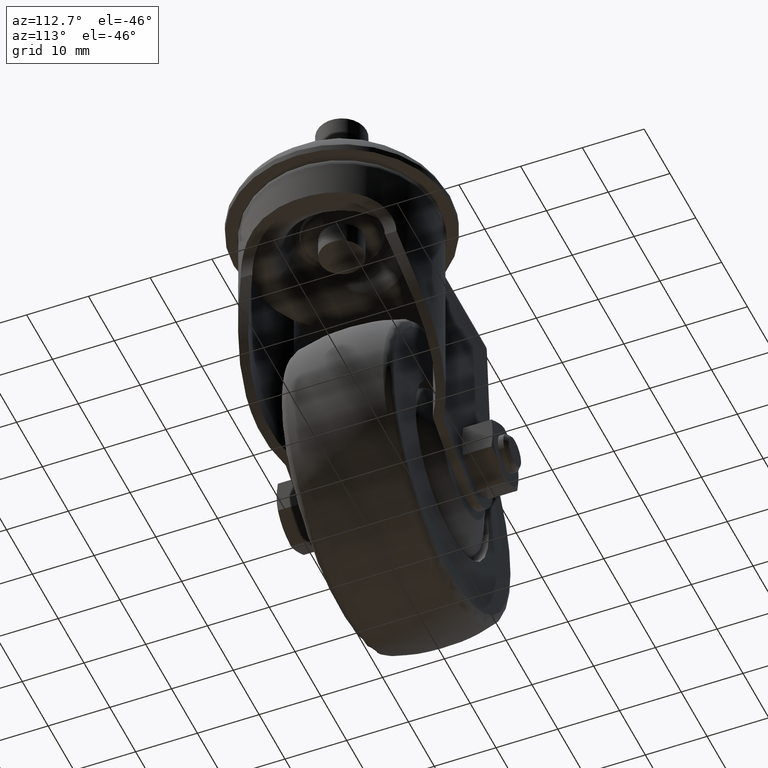
[diagram: clean part render]
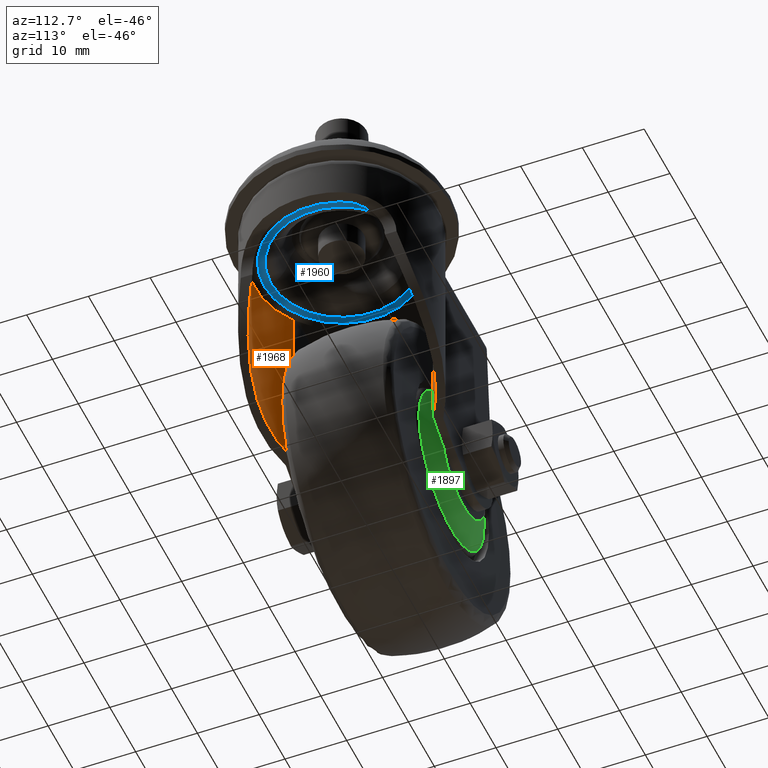
[diagram: same view with three faces highlighted in distinct colors, each labeled with its STEP entity id]
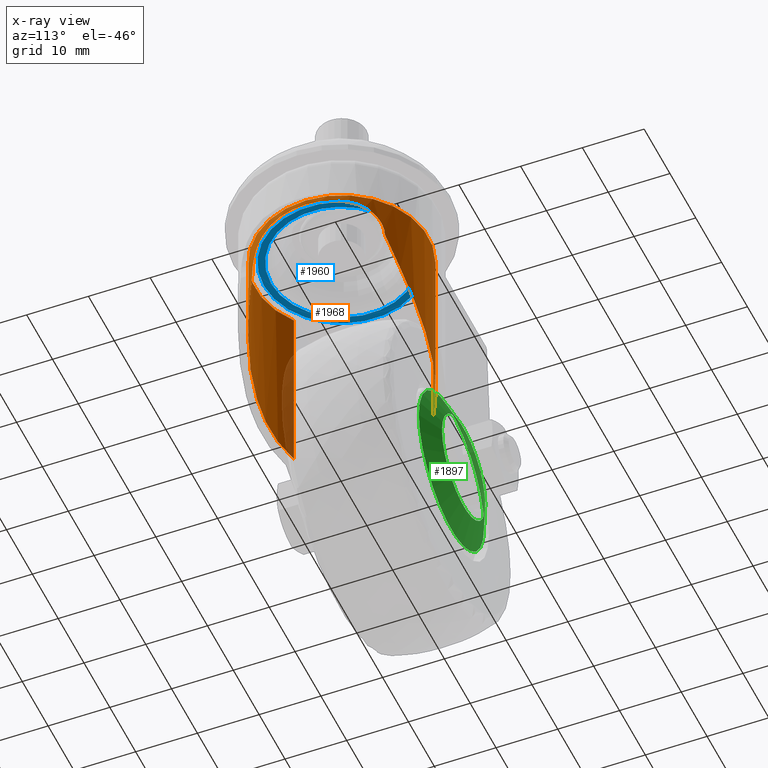
[diagram: x-ray of the same camera — body ghosted, the three highlighted faces saturated]
A machine part, auxiliary view with three faces highlighted in distinct colors.
The next image is the same camera in x-ray (body ghosted, the three faces saturated) — at least one of them is partly hidden behind the body in this view.
Their STEP definitions:

[orange] entity #1968 — the highlighted cylindrical surface (partial cylindrical patch) has radius 14 mm, axis along (0, -0, -1).
#48=B_SPLINE_CURVE_WITH_KNOTS('',3,(#3733,#3734,#3735,#3736,#3737,#3738,
#3739,#3740,#3741,#3742,#3743,#3744,#3745,#3746,#3747,#3748,#3749,#3750,
#3751,#3752,#3753,#3754,#3755,#3756,#3757,#3758),.UNSPECIFIED.,.F.,.F.,
(4,2,2,2,2,2,2,2,2,2,2,2,4),(-4.50052498427525,-4.31648116344321,-4.13222238282689,
-3.84929011113009,-3.56635783943329,-3.28342556773649,-3.00049329603969,
-2.71756102434289,-2.43462875264609,-2.15169648094929,-1.86876420925248,
-1.68450542863616,-1.50046160780413),.UNSPECIFIED.);
#49=B_SPLINE_CURVE_WITH_KNOTS('',3,(#3761,#3762,#3763,#3764,#3765,#3766,
#3767,#3768,#3769,#3770,#3771,#3772,#3773,#3774,#3775,#3776),
 .UNSPECIFIED.,.F.,.F.,(4,2,2,2,2,2,2,4),(-9.76895994581733,-9.76434353859635,
-9.51017058763289,-9.02834194595863,-8.54651330428438,-7.79385570672765,
-7.04119810917093,-6.87863837584779),.UNSPECIFIED.);
#50=B_SPLINE_CURVE_WITH_KNOTS('',3,(#3780,#3781,#3782,#3783,#3784,#3785,
#3786,#3787,#3788,#3789,#3790,#3791,#3792,#3793,#3794,#3795),
 .UNSPECIFIED.,.F.,.F.,(4,2,2,2,2,2,2,4),(-15.2648932803821,-15.102333547059,
-14.3496759495022,-13.5970183519455,-13.1151897102712,-12.633361068597,
-12.3791881176335,-12.3745717104125),.UNSPECIFIED.);
#180=LINE('',#3883,#250);
#182=LINE('',#3888,#252);
#250=VECTOR('',#2976,1000.);
#252=VECTOR('',#2982,1000.);
#286=CYLINDRICAL_SURFACE('',#2415,14.);
#470=FACE_OUTER_BOUND('',#622,.T.);
#622=EDGE_LOOP('',(#1730,#1731,#1732,#1733,#1734,#1735));
#754=CIRCLE('',#2404,14.);
#956=VERTEX_POINT('',#3729);
#957=VERTEX_POINT('',#3731);
#958=VERTEX_POINT('',#3760);
#959=VERTEX_POINT('',#3779);
#973=VERTEX_POINT('',#3841);
#974=VERTEX_POINT('',#3842);
#1196=EDGE_CURVE('',#956,#957,#48,.T.);
#1197=EDGE_CURVE('',#958,#957,#49,.T.);
#1199=EDGE_CURVE('',#956,#959,#50,.T.);
#1221=EDGE_CURVE('',#973,#974,#754,.T.);
#1231=EDGE_CURVE('',#959,#974,#180,.F.);
#1234=EDGE_CURVE('',#973,#958,#182,.T.);
#1730=ORIENTED_EDGE('',*,*,#1234,.F.);
#1731=ORIENTED_EDGE('',*,*,#1221,.T.);
#1732=ORIENTED_EDGE('',*,*,#1231,.F.);
#1733=ORIENTED_EDGE('',*,*,#1199,.F.);
#1734=ORIENTED_EDGE('',*,*,#1196,.T.);
#1735=ORIENTED_EDGE('',*,*,#1197,.F.);
#1968=ADVANCED_FACE('',(#470),#286,.F.);
#2404=AXIS2_PLACEMENT_3D('',#3843,#2957,#2958);
#2415=AXIS2_PLACEMENT_3D('',#3892,#2987,#2988);
#2957=DIRECTION('center_axis',(0.,1.,0.));
#2958=DIRECTION('ref_axis',(0.,0.,1.));
#2976=DIRECTION('',(0.,-1.,0.));
#2982=DIRECTION('',(0.,-1.,0.));
#2987=DIRECTION('center_axis',(0.,-1.,0.));
#2988=DIRECTION('ref_axis',(1.,0.,1.83697019872103E-16));
#3729=CARTESIAN_POINT('',(29.9932977378689,21.5021497517872,-10.7294266295102));
#3731=CARTESIAN_POINT('',(29.9932977378689,21.5021497517872,10.7294266295102));
#3733=CARTESIAN_POINT('Ctrl Pts',(29.9932977378689,21.5021497517872,-10.7294266295102));
#3734=CARTESIAN_POINT('Ctrl Pts',(29.9935175740911,22.1157169815866,-10.7292423649946));
#3735=CARTESIAN_POINT('Ctrl Pts',(30.0950706310007,22.7668244081721,-10.6464815801926));
#3736=CARTESIAN_POINT('Ctrl Pts',(30.4851424153118,23.9607026494208,-10.300491548727));
#3737=CARTESIAN_POINT('Ctrl Pts',(30.7722073474883,24.5031957180747,-10.034626549755));
#3738=CARTESIAN_POINT('Ctrl Pts',(31.5391543708306,25.6010190553182,-9.23978669247747));
#3739=CARTESIAN_POINT('Ctrl Pts',(32.0509762321036,26.0612104083624,-8.63684012137253));
#3740=CARTESIAN_POINT('Ctrl Pts',(33.0126370722664,26.740438867123,-7.23986423899418));
#3741=CARTESIAN_POINT('Ctrl Pts',(33.4636979092195,26.9554313263418,-6.44471289819139));
#3742=CARTESIAN_POINT('Ctrl Pts',(34.2114531230002,27.2432942046711,-4.7260802468303));
#3743=CARTESIAN_POINT('Ctrl Pts',(34.5083540818983,27.3168441785935,-3.80232517456541));
#3744=CARTESIAN_POINT('Ctrl Pts',(34.9025927719111,27.403481676266,-1.91081691868244));
#3745=CARTESIAN_POINT('Ctrl Pts',(35.,27.4172088326356,-0.943107572322668));
#3746=CARTESIAN_POINT('Ctrl Pts',(35.,27.4172088326356,0.943107572322668));
#3747=CARTESIAN_POINT('Ctrl Pts',(34.9025927719111,27.403481676266,1.91081691868244));
#3748=CARTESIAN_POINT('Ctrl Pts',(34.5083540818983,27.3168441785935,3.80232517456541));
#3749=CARTESIAN_POINT('Ctrl Pts',(34.2114531230002,27.2432942046711,4.7260802468303));
#3750=CARTESIAN_POINT('Ctrl Pts',(33.4636979092195,26.9554313263418,6.44471289819139));
#3751=CARTESIAN_POINT('Ctrl Pts',(33.0126370722664,26.740438867123,7.23986423899419));
#3752=CARTESIAN_POINT('Ctrl Pts',(32.0509762321036,26.0612104083624,8.63684012137254));
#3753=CARTESIAN_POINT('Ctrl Pts',(31.5391543708306,25.6010190553182,9.23978669247747));
#3754=CARTESIAN_POINT('Ctrl Pts',(30.7722073474883,24.5031957180747,10.034626549755));
#3755=CARTESIAN_POINT('Ctrl Pts',(30.4851424153118,23.9607026494208,10.300491548727));
#3756=CARTESIAN_POINT('Ctrl Pts',(30.0950706310007,22.7668244081721,10.6464815801926));
#3757=CARTESIAN_POINT('Ctrl Pts',(29.9935175740911,22.1157169815866,10.7292423649946));
#3758=CARTESIAN_POINT('Ctrl Pts',(29.9932977378689,21.5021497517872,10.7294266295102));
#3760=CARTESIAN_POINT('',(12.6670833437505,-1.47339708226622,11.25));
#3761=CARTESIAN_POINT('Ctrl Pts',(12.6670833437505,-1.47339708226623,11.25));
#3762=CARTESIAN_POINT('Ctrl Pts',(12.6789797533896,-1.46545036773953,11.2588117146694));
#3763=CARTESIAN_POINT('Ctrl Pts',(12.6908846413916,-1.45748953484536,11.2676004865109));
#3764=CARTESIAN_POINT('Ctrl Pts',(13.3587068673861,-1.01043837254412,11.7589871441136));
#3765=CARTESIAN_POINT('Ctrl Pts',(14.0398961379385,-0.526564444960924,12.1676569894923));
#3766=CARTESIAN_POINT('Ctrl Pts',(15.8567040234254,0.8405444138049,13.0891193970077));
#3767=CARTESIAN_POINT('Ctrl Pts',(17.1618216862465,1.92522045738027,13.5239604426414));
#3768=CARTESIAN_POINT('Ctrl Pts',(19.670709327378,4.29793025636247,13.9950741384418));
#3769=CARTESIAN_POINT('Ctrl Pts',(20.8731572103217,5.58615516469666,14.037404389093));
#3770=CARTESIAN_POINT('Ctrl Pts',(23.5114612282214,8.73942751076539,13.8668965623136));
#3771=CARTESIAN_POINT('Ctrl Pts',(24.9705514931353,10.8221291388821,13.4948307209885));
#3772=CARTESIAN_POINT('Ctrl Pts',(27.5105581718342,15.2267800626351,12.4694975043071));
#3773=CARTESIAN_POINT('Ctrl Pts',(28.591381633232,17.5481532054245,11.8135266765536));
#3774=CARTESIAN_POINT('Ctrl Pts',(29.6476092627199,20.4583842063972,11.0124609774243));
#3775=CARTESIAN_POINT('Ctrl Pts',(29.8254205752789,20.9787606069508,10.8701395826524));
#3776=CARTESIAN_POINT('Ctrl Pts',(29.9932977378689,21.5021497517872,10.7294266295102));
#3779=CARTESIAN_POINT('',(12.6670833437505,-1.47339708226622,-11.25));
#3780=CARTESIAN_POINT('Ctrl Pts',(29.9932977378689,21.5021497517872,-10.7294266295102));
#3781=CARTESIAN_POINT('Ctrl Pts',(29.8254205752789,20.9787606069508,-10.8701395826524));
#3782=CARTESIAN_POINT('Ctrl Pts',(29.64760926272,20.4583842063972,-11.0124609774243));
#3783=CARTESIAN_POINT('Ctrl Pts',(28.591381633232,17.5481532054245,-11.8135266765536));
#3784=CARTESIAN_POINT('Ctrl Pts',(27.5105581718342,15.2267800626352,-12.4694975043071));
#3785=CARTESIAN_POINT('Ctrl Pts',(24.9705514931353,10.8221291388821,-13.4948307209885));
#3786=CARTESIAN_POINT('Ctrl Pts',(23.5114612282214,8.73942751076539,-13.8668965623136));
#3787=CARTESIAN_POINT('Ctrl Pts',(20.8731572103217,5.58615516469666,-14.037404389093));
#3788=CARTESIAN_POINT('Ctrl Pts',(19.670709327378,4.29793025636247,-13.9950741384418));
#3789=CARTESIAN_POINT('Ctrl Pts',(17.1618216862465,1.92522045738027,-13.5239604426414));
#3790=CARTESIAN_POINT('Ctrl Pts',(15.8567040234254,0.8405444138049,-13.0891193970077));
#3791=CARTESIAN_POINT('Ctrl Pts',(14.0398961379385,-0.526564444960924,-12.1676569894923));
#3792=CARTESIAN_POINT('Ctrl Pts',(13.3587068673861,-1.01043837254412,-11.7589871441136));
#3793=CARTESIAN_POINT('Ctrl Pts',(12.6908846413916,-1.45748953484536,-11.2676004865109));
#3794=CARTESIAN_POINT('Ctrl Pts',(12.6789797533896,-1.46545036773953,-11.2588117146694));
#3795=CARTESIAN_POINT('Ctrl Pts',(12.6670833437505,-1.47339708226623,-11.25));
#3841=CARTESIAN_POINT('',(12.6670833437505,28.35,11.25));
#3842=CARTESIAN_POINT('',(12.6670833437505,28.35,-11.25));
#3843=CARTESIAN_POINT('Origin',(21.,28.35,0.));
#3883=CARTESIAN_POINT('',(12.6670833437505,-10.,-11.25));
#3888=CARTESIAN_POINT('',(12.6670833437505,-10.,11.25));
#3892=CARTESIAN_POINT('Origin',(21.,-10.,0.));

[blue] entity #1960 — the highlighted toroidal blend (fillet) surface has major radius 12.62 mm and minor (blend) radius 7.17 mm.
#113=TOROIDAL_SURFACE('',#2400,12.6200000000001,7.17000000000082);
#462=FACE_OUTER_BOUND('',#611,.T.);
#611=EDGE_LOOP('',(#1691,#1692,#1693,#1694));
#751=CIRCLE('',#2399,11.47044713244);
#752=CIRCLE('',#2401,7.17000000000082);
#753=CIRCLE('',#2402,12.62);
#971=VERTEX_POINT('',#3833);
#972=VERTEX_POINT('',#3837);
#1218=EDGE_CURVE('',#971,#971,#751,.T.);
#1219=EDGE_CURVE('',#971,#972,#752,.T.);
#1220=EDGE_CURVE('',#972,#972,#753,.T.);
#1691=ORIENTED_EDGE('',*,*,#1218,.F.);
#1692=ORIENTED_EDGE('',*,*,#1219,.T.);
#1693=ORIENTED_EDGE('',*,*,#1220,.T.);
#1694=ORIENTED_EDGE('',*,*,#1219,.F.);
#1960=ADVANCED_FACE('',(#462),#113,.T.);
#2399=AXIS2_PLACEMENT_3D('',#3835,#2947,#2948);
#2400=AXIS2_PLACEMENT_3D('',#3836,#2949,#2950);
#2401=AXIS2_PLACEMENT_3D('',#3838,#2951,#2952);
#2402=AXIS2_PLACEMENT_3D('',#3839,#2953,#2954);
#2947=DIRECTION('center_axis',(0.,-1.,0.));
#2948=DIRECTION('ref_axis',(0.,0.,-1.));
#2949=DIRECTION('center_axis',(0.,-1.,0.));
#2950=DIRECTION('ref_axis',(0.,0.,-1.));
#2951=DIRECTION('center_axis',(-1.,0.,-2.24400813466418E-16));
#2952=DIRECTION('ref_axis',(-2.24400813466418E-16,0.,1.));
#2953=DIRECTION('center_axis',(0.,-1.,0.));
#2954=DIRECTION('ref_axis',(0.,0.,-1.));
#3833=CARTESIAN_POINT('',(21.,28.4427527805873,11.47044713244));
#3835=CARTESIAN_POINT('Origin',(21.,28.4427527805873,0.));
#3836=CARTESIAN_POINT('Origin',(21.,35.5200000000008,0.));
#3837=CARTESIAN_POINT('',(21.,28.35,12.62));
#3838=CARTESIAN_POINT('Origin',(21.,35.5200000000008,12.6200000000001));
#3839=CARTESIAN_POINT('Origin',(21.,28.35,0.));

[green] entity #1897 — the highlighted conical surface has half-angle 65 deg.
#136=LINE('',#3331,#206);
#206=VECTOR('',#2644,12.6226182617407);
#399=FACE_OUTER_BOUND('',#538,.T.);
#538=EDGE_LOOP('',(#1420,#1421,#1422,#1423));
#686=CIRCLE('',#2265,12.6226182617407);
#687=CIRCLE('',#2267,8.38046179954888);
#882=VERTEX_POINT('',#3326);
#883=VERTEX_POINT('',#3330);
#1076=EDGE_CURVE('',#882,#882,#686,.T.);
#1077=EDGE_CURVE('',#882,#883,#136,.T.);
#1078=EDGE_CURVE('',#883,#883,#687,.T.);
#1420=ORIENTED_EDGE('',*,*,#1076,.F.);
#1421=ORIENTED_EDGE('',*,*,#1077,.T.);
#1422=ORIENTED_EDGE('',*,*,#1078,.T.);
#1423=ORIENTED_EDGE('',*,*,#1077,.F.);
#1838=CONICAL_SURFACE('',#2266,12.6226182617407,1.13446401379631);
#1897=ADVANCED_FACE('',(#399),#1838,.T.);
#2265=AXIS2_PLACEMENT_3D('',#3328,#2640,#2641);
#2266=AXIS2_PLACEMENT_3D('',#3329,#2642,#2643);
#2267=AXIS2_PLACEMENT_3D('',#3332,#2645,#2646);
#2640=DIRECTION('center_axis',(1.,0.,0.));
#2641=DIRECTION('ref_axis',(0.,0.,-1.));
#2642=DIRECTION('center_axis',(1.,0.,0.));
#2643=DIRECTION('ref_axis',(0.,0.,-1.));
#2644=DIRECTION('',(-0.422618261740703,1.10990693043675E-16,-0.906307787036648));
#2645=DIRECTION('center_axis',(1.,0.,0.));
#2646=DIRECTION('ref_axis',(0.,0.,-1.));
#3326=CARTESIAN_POINT('',(2.02499615189343,-1.54582490510997E-15,12.6226182617407));
#3328=CARTESIAN_POINT('Origin',(2.02499615189343,0.,0.));
#3329=CARTESIAN_POINT('Origin',(2.02499615189343,0.,0.));
#3330=CARTESIAN_POINT('',(0.0468461064816514,-1.02631057181942E-15,8.38046179954889));
#3331=CARTESIAN_POINT('',(2.02499615189343,-1.54582490510997E-15,12.6226182617407));
#3332=CARTESIAN_POINT('Origin',(0.046846106481676,0.,0.));